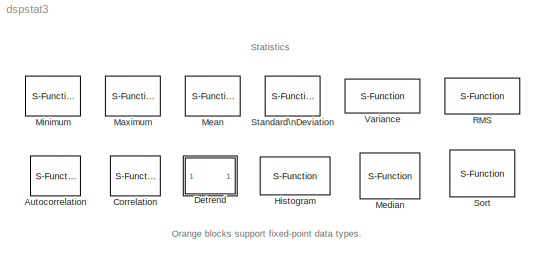
MODEL dspstat3
KIND library
BLOCK [S-Function] Autocorrelation
  CopyFcn = dspfixptcopycallback
  DialogController = dspDDGCreate
  DialogControllerArgs = DataTag0
  FunctionName = sdspacf2
  MaskCallbackString = |||||||||||||||||
  MaskDescription = Compute the autocorrelation of vectors or frame-based matrices. For frame-based inputs, the block computes along the input's columns.\n\nWhen \"Compute all non-negative lags\" is selected, it computes using lags in the range [0, length(input)-1]. Otherwise, it computes using lags in the range [0, maxLag], where you specify the value of maxLag in the \"Maximum non-negative lag\" parameter.
  MaskDisplay = disp('ACF')
  MaskEnableString = on,on,on,on,off,off,on,on,on,on,on,on,on,on,on,on,on,on
  MaskHelp = web(dspbhelp);
  MaskIconFrame = on
  MaskIconOpaque = on
  MaskIconRotate = none
  MaskIconUnits = autoscale
  MaskInitialization = dtInfo = dspblkacf2('init');\n
  MaskPromptString = Compute all non-negative lags|Maximum non-negative lag (less than input length):|Scaling:|Computation domain:|--------------- Show additional parameters ---------------|Allow overrides from DSP Fixed-Point Attributes blocks|Fixed-point output attributes:|Output word length:|Output fraction length:|Fixed-point accumulator attributes:|Accumulator word length:|Accumulator fraction length:|Fixed-point...<+164ch>
  MaskSelfModifiable = on
  MaskStyleString = checkbox,edit,popup(None|Biased|Unbiased|Unity at zero-lag),popup(Time|Frequency),checkbox,checkbox,popup(Same as accumulator|Same as product output|Same as input|Binary point scaling|Slope and bias scaling|User-defined),edit,edit,popup(Inherit via internal rule|Same as product output|Same as input|Binary point scaling|Slope and bias scaling|User-defined),edit,edit,popup(Inherit via internal rule|...<+120ch>
  MaskTabNameString = ,,,,,,,,,,,,,,,,,
  MaskToolTipString = on,on,on,on,on,on,on,on,on,on,on,on,on,on,on,on,on,on
  MaskTunableValueString = off,off,on,off,off,off,off,off,off,off,off,off,off,off,off,off,off,off
  MaskType = Autocorrelation
  MaskValueString = on|1|None|Time|off|on|Same as accumulator|16|15|Inherit via internal rule|32|30|Inherit via internal rule|32|30|Floor|off|off
  MaskVarAliasString = ,,,,,,,,,,,,,,,,,
  MaskVariables = AllPositiveLags=@1;maxlag=@2;bias=@3;domain=@4;additionalParams=@5;allowOverrides=@6;outputMode=@7;outputWordLength=@8;outputFracLength=@9;accumMode=@10;accumWordLength=@11;accumFracLength=@12;prodOutputMode=@13;prodOutputWordLength=@14;prodOutputFracLength=@15;roundingMode=@16;overflowMode=@17;LockScale=@18;
  MaskVisibilityString = on,on,on,on,off,off,on,on,on,on,on,on,on,on,on,on,on,on
  Parameters = AllPositiveLags,maxlag,bias,domain,dtInfo.prodOutputMode,dtInfo.prodOutputWordLength,dtInfo.prodOutputFracLength,dtInfo.accumMode,dtInfo.accumWordLength,dtInfo.accumFracLength,dtInfo.outputMode,dtInfo.outputWordLength,dtInfo.outputFracLength,dtInfo.roundingMode,dtInfo.overflowMode
  Ports = [1, 1]
BLOCK [S-Function] Correlation
  CopyFcn = dspfixptcopycallback
  DialogController = dspDDGCreate
  DialogControllerArgs = DataTag1
  FunctionName = sdspconvcorr
  MaskCallbackString = ||||||||||||||
  MaskDescription = Correlate two inputs. The block computes in the time domain or frequency domain.  To minimize the number of computations, select \"Fastest\" in the Computation domain parameter. To minimize memory use, select \"Time\" in the Computation domain parameter.
  MaskDisplay = disp('XCORR')
  MaskEnableString = on,off,off,on,on,on,on,on,on,on,on,on,on,on,on
  MaskHelp = web(dspbhelp);
  MaskIconFrame = on
  MaskIconOpaque = on
  MaskIconRotate = none
  MaskIconUnits = autoscale
  MaskInitialization = dtInfo = dspblkconvcorr('init');
  MaskPromptString = Computation domain:|------- Show additional parameters -------|Allow overrides from DSP Fixed-Point Attributes blocks|Fixed-point output attributes:|Output word length:|Output fraction length:|Fixed-point accumulator attributes:|Accumulator word length:|Accumulator fraction length:|Fixed-point product output attributes:|Product output word length:|Product output fraction length:|Round integer calc...<+58ch>
  MaskSelfModifiable = on
  MaskStyleString = popup(Time|Frequency|Fastest),checkbox,checkbox,popup(Same as accumulator|Same as product output|Same as first input|Binary point scaling|Slope and bias scaling|User-defined),edit,edit,popup(Inherit via internal rule|Same as product output|Same as first input|Binary point scaling|Slope and bias scaling|User-defined),edit,edit,popup(Inherit via internal rule|Same as first input|Binary point scaling...<+86ch>
  MaskTabNameString = ,,,,,,,,,,,,,,
  MaskToolTipString = on,on,on,on,on,on,on,on,on,on,on,on,on,on,on
  MaskTunableValueString = off,off,off,off,off,off,off,off,off,off,off,off,off,off,off
  MaskType = Correlation
  MaskValueString = Time|off|on|Same as accumulator|16|15|Inherit via internal rule|32|30|Inherit via internal rule|32|30|Floor|off|off
  MaskVarAliasString = ,,,,,,,,,,,,,,
  MaskVariables = domain=@1;additionalParams=@2;allowOverrides=@3;outputMode=@4;outputWordLength=@5;outputFracLength=@6;accumMode=@7;accumWordLength=@8;accumFracLength=@9;prodOutputMode=@10;prodOutputWordLength=@11;prodOutputFracLength=@12;roundingMode=@13;overflowMode=@14;LockScale=@15;
  MaskVisibilityString = on,off,off,on,on,on,on,on,on,on,on,on,on,on,on
  Parameters = domain,1,dtInfo.prodOutputMode,dtInfo.prodOutputWordLength,dtInfo.prodOutputFracLength,dtInfo.accumMode,dtInfo.accumWordLength,dtInfo.accumFracLength,dtInfo.outputMode,dtInfo.outputWordLength,dtInfo.outputFracLength,dtInfo.roundingMode,dtInfo.overflowMode
  Ports = [2, 1]
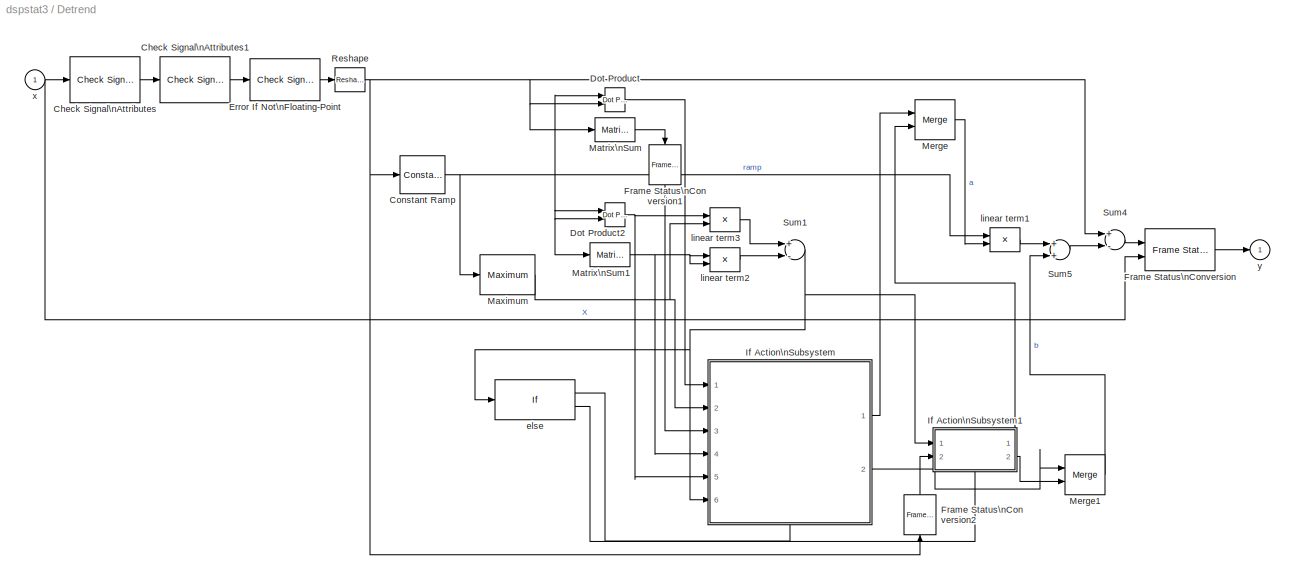
BLOCK [SubSystem] Detrend
  MaskDescription = Remove linear trend from vector input.
  MaskDisplay = plot(0,0,100,100,[12 20 24 32 38 44 49 54 67 69 71 78 81 89],[56 76 60 79 75 83 80 87 65 76 84 86 91 89],[],[],[],[],[],[],[12 20 24 32 38 44 49 54 67 69 71 78 81 89],[12 31 13 31 27 34 30 36 13 23 30 31 34 32],[4 96],[61 90],[47 47 42 47 52],[64 44 50 44 50],[4 96],[23 23])
  MaskHelp = web(dspbhelp);
  MaskIconFrame = on
  MaskIconOpaque = on
  MaskIconRotate = none
  MaskIconUnits = autoscale
  MaskType = Detrend
  MinAlgLoopOccurrences = off
  Ports = [1, 1]
  PropExecContextAcrossSSBoundary = on
  RTWSystemCode = Auto
  TreatAsAtomicUnit = off
BLOCK [Reference] Detrend/Check Signal\nAttributes  REF=dspsigattribs/Check Signal\nAttributes
  Complexity = Ignore
  DatatypeCheckMethod = Ignore
  DatatypeGeneral = Boolean
  Dimensions = Vector (1-D or 2-D) or scalar
  DimsCheckMethod = Is...
  DtypeFixedSpecific = Any fixed-point
  DtypeFloatSpecific = Any floating-point
  DtypeIntSpecific = Any integer
  Frame = Ignore
  Ports = [1, 1]
  SampleMode = Ignore
  ShowPortLabels = on
  SigAttribCheckMethod = Does not match attributes exactly
  SourceBlock = dspsigattribs/Check Signal\nAttributes
  SourceType = Check Signal Attributes
BLOCK [Reference] Detrend/Check Signal\nAttributes1  REF=dspsigattribs/Check Signal\nAttributes
  Complexity = Ignore
  DatatypeCheckMethod = Ignore
  DatatypeGeneral = Boolean
  Dimensions = Row vector (2-D)
  DimsCheckMethod = Is...
  DtypeFixedSpecific = Any fixed-point
  DtypeFloatSpecific = Any floating-point
  DtypeIntSpecific = Any integer
  Frame = Frame-based
  Ports = [1, 1]
  SampleMode = Ignore
  ShowPortLabels = on
  SigAttribCheckMethod = Matches attributes exactly
  SourceBlock = dspsigattribs/Check Signal\nAttributes
  SourceType = Check Signal Attributes
BLOCK [Reference] Detrend/Constant Ramp  REF=dspsrcs4/Constant Ramp
  L = Rows
  Offset = 1
  Ports = [1, 1]
  Slope = 1
  SourceBlock = dspsrcs4/Constant Ramp
  SourceType = Constant Ramp
  additionalParams = off
  allowOverrides = on
  dataType = Same as input
  fracBitsMode = Best precision
  isSigned = on
  numFracBits = 15
  udDataType = sfix(16)
  wordLen = 16
BLOCK [Reference] Detrend/Dot Product  REF=simulink/Math\nOperations/Dot Product
  DoSatur = off
  InputSameDT = off
  LockScale = off
  OutDataType = sfix(16)
  OutScaling = 2^-10
  OutputDataTypeScalingMode = Inherit via internal rule
  Ports = [2, 1]
  RndMeth = Floor
  SourceBlock = simulink/Math\nOperations/Dot Product
  SourceType = Dot Product
BLOCK [Reference] Detrend/Dot Product2  REF=simulink/Math\nOperations/Dot Product
  DoSatur = off
  InputSameDT = off
  LockScale = off
  OutDataType = sfix(16)
  OutScaling = 2^-10
  OutputDataTypeScalingMode = Inherit via internal rule
  Ports = [2, 1]
  RndMeth = Floor
  SourceBlock = simulink/Math\nOperations/Dot Product
  SourceType = Dot Product
BLOCK [Reference] Detrend/Error If Not\nFloating-Point  REF=dspsigattribs/Check Signal\nAttributes
  Complexity = Ignore
  DatatypeCheckMethod = Is...
  DatatypeGeneral = Floating-point
  Dimensions = 1-D
  DimsCheckMethod = Ignore
  DtypeFixedSpecific = Any fixed-point
  DtypeFloatSpecific = Any floating-point
  DtypeIntSpecific = Any integer
  Frame = Ignore
  Ports = [1, 1]
  SampleMode = Ignore
  ShowPortLabels = on
  SigAttribCheckMethod = Does not match attributes exactly
  SourceBlock = dspsigattribs/Check Signal\nAttributes
  SourceType = Check Signal Attributes
BLOCK [Reference] Detrend/Frame Status\nConversion  REF=dspsigattribs/Frame Status\nConversion
  Ports = [2, 1]
  ShowPortLabels = off
  SourceBlock = dspsigattribs/Frame Status\nConversion
  SourceType = Frame Status Conversion
  growRefPort = on
  outframe = Frame-based
BLOCK [Reference] Detrend/Frame Status\nConversion1  REF=dspsigattribs/Frame Status\nConversion
  Ports = [1, 1]
  ShowPortLabels = off
  SourceBlock = dspsigattribs/Frame Status\nConversion
  SourceType = Frame Status Conversion
  growRefPort = off
  outframe = Sample-based
BLOCK [Reference] Detrend/Frame Status\nConversion2  REF=dspsigattribs/Frame Status\nConversion
  Ports = [1, 1]
  ShowPortLabels = off
  SourceBlock = dspsigattribs/Frame Status\nConversion
  SourceType = Frame Status Conversion
  growRefPort = off
  outframe = Sample-based
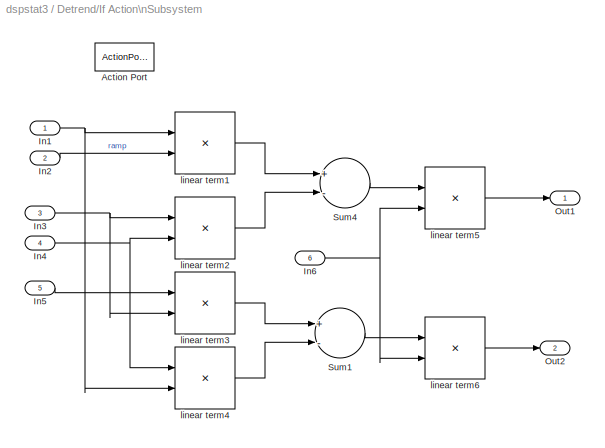
BLOCK [SubSystem] Detrend/If Action\nSubsystem
  MinAlgLoopOccurrences = off
  Ports = [6, 2, 0, 0, 0, 0, 0, 1]
  PropExecContextAcrossSSBoundary = on
  RTWSystemCode = Auto
  TreatAsAtomicUnit = on
BLOCK [ActionPort] Detrend/If Action\nSubsystem/Action Port
BLOCK [Inport] Detrend/If Action\nSubsystem/In1
  IconDisplay = Port number
  LatchInput = off
BLOCK [Inport] Detrend/If Action\nSubsystem/In2
  IconDisplay = Port number
  LatchInput = off
  Port = 2
BLOCK [Inport] Detrend/If Action\nSubsystem/In3
  IconDisplay = Port number
  LatchInput = off
  Port = 3
BLOCK [Inport] Detrend/If Action\nSubsystem/In4
  IconDisplay = Port number
  LatchInput = off
  Port = 4
BLOCK [Inport] Detrend/If Action\nSubsystem/In5
  IconDisplay = Port number
  LatchInput = off
  Port = 5
BLOCK [Inport] Detrend/If Action\nSubsystem/In6
  IconDisplay = Port number
  LatchInput = off
  Port = 6
BLOCK [Outport] Detrend/If Action\nSubsystem/Out1
  BusOutputAsStruct = off
  IconDisplay = Port number
BLOCK [Outport] Detrend/If Action\nSubsystem/Out2
  BusOutputAsStruct = off
  IconDisplay = Port number
  Port = 2
BLOCK [Sum] Detrend/If Action\nSubsystem/Sum1
  Inputs = +-
  Ports = [2, 1]
BLOCK [Sum] Detrend/If Action\nSubsystem/Sum4
  Inputs = +-
  Ports = [2, 1]
BLOCK [Product] Detrend/If Action\nSubsystem/linear term1
  Ports = [2, 1]
  RndMeth = Floor
BLOCK [Product] Detrend/If Action\nSubsystem/linear term2
  Ports = [2, 1]
  RndMeth = Floor
BLOCK [Product] Detrend/If Action\nSubsystem/linear term3
  Ports = [2, 1]
  RndMeth = Floor
BLOCK [Product] Detrend/If Action\nSubsystem/linear term4
  Ports = [2, 1]
  RndMeth = Floor
BLOCK [Product] Detrend/If Action\nSubsystem/linear term5
  Inputs = */
  Ports = [2, 1]
  RndMeth = Floor
BLOCK [Product] Detrend/If Action\nSubsystem/linear term6
  Inputs = */
  Ports = [2, 1]
  RndMeth = Floor
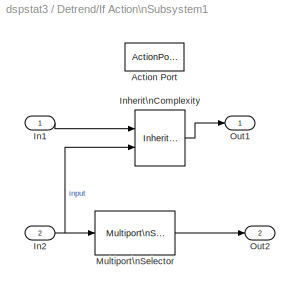
BLOCK [SubSystem] Detrend/If Action\nSubsystem1
  MinAlgLoopOccurrences = off
  Ports = [2, 2, 0, 0, 0, 0, 0, 1]
  PropExecContextAcrossSSBoundary = on
  RTWSystemCode = Auto
  TreatAsAtomicUnit = on
BLOCK [ActionPort] Detrend/If Action\nSubsystem1/Action Port
BLOCK [Inport] Detrend/If Action\nSubsystem1/In1
  IconDisplay = Port number
  LatchInput = off
BLOCK [Inport] Detrend/If Action\nSubsystem1/In2
  IconDisplay = Port number
  LatchInput = off
  Port = 2
BLOCK [Reference] Detrend/If Action\nSubsystem1/Inherit\nComplexity  REF=dspsigattribs/Inherit\nComplexity
  Ports = [2, 1]
  SourceBlock = dspsigattribs/Inherit\nComplexity
  SourceType = Inherit Complexity
BLOCK [Reference] Detrend/If Action\nSubsystem1/Multiport\nSelector  REF=dspindex/Multiport\nSelector
  Ports = [1, 1]
  SourceBlock = dspindex/Multiport\nSelector
  SourceType = Multiport Selector
  idxCellArray = 1
  idxErrMode = Clip Index
  rowsOrCols = Rows
BLOCK [Outport] Detrend/If Action\nSubsystem1/Out1
  BusOutputAsStruct = off
  IconDisplay = Port number
BLOCK [Outport] Detrend/If Action\nSubsystem1/Out2
  BusOutputAsStruct = off
  IconDisplay = Port number
  Port = 2
BLOCK [Reference] Detrend/Matrix\nSum  REF=dspmtrx3/Matrix\nSum
  DialogController = dspDDGCreate
  DialogControllerArgs = DataTag2
  Dim = Columns
  Ports = [1, 1]
  SourceBlock = dspmtrx3/Matrix\nSum
  SourceType = Matrix Sum
  accumFracLength = 30
  accumMode = Inherit via internal rule
  accumWordLength = 32
  additionalParams = off
  allowOverrides = on
  outputFracLength = 15
  outputMode = Same as accumulator
  outputWordLength = 16
  overflowMode = off
  roundingMode = Floor
BLOCK [Reference] Detrend/Matrix\nSum1  REF=dspmtrx3/Matrix\nSum
  DialogController = dspDDGCreate
  DialogControllerArgs = DataTag3
  Dim = Columns
  Ports = [1, 1]
  SourceBlock = dspmtrx3/Matrix\nSum
  SourceType = Matrix Sum
  accumFracLength = 30
  accumMode = Inherit via internal rule
  accumWordLength = 32
  additionalParams = off
  allowOverrides = on
  outputFracLength = 15
  outputMode = Same as accumulator
  outputWordLength = 16
  overflowMode = off
  roundingMode = Floor
BLOCK [Reference] Detrend/Maximum  REF=dspstat3/Maximum
  DialogController = dspDDGCreate
  DialogControllerArgs = DataTag4
  Ports = [1, 1]
  SourceBlock = dspstat3/Maximum
  SourceType = Maximum
  accumFracLength = 30
  accumMode = Same as product output
  accumWordLength = 32
  additionalParams = off
  allowOverrides = on
  fcn = Value
  overflowMode = off
  prodOutputFracLength = 30
  prodOutputMode = Same as input
  prodOutputWordLength = 32
  reset = None
  roundingMode = Floor
BLOCK [Merge] Detrend/Merge
  Ports = [2, 1]
BLOCK [Merge] Detrend/Merge1
  Ports = [2, 1]
BLOCK [Reference] Detrend/Reshape  REF=simulink/Math\nOperations/Reshape
  OutputDimensionality = Column vector
  OutputDimensions = [1,1]
  Ports = [1, 1]
  SourceBlock = simulink/Math\nOperations/Reshape
  SourceType = Reshape
BLOCK [Sum] Detrend/Sum1
  Inputs = +-
  Ports = [2, 1]
BLOCK [Sum] Detrend/Sum4
  Inputs = +-
  Ports = [2, 1]
BLOCK [Sum] Detrend/Sum5
  Inputs = 2
  Ports = [2, 1]
BLOCK [If] Detrend/else
  IfExpression = u1 > 1
  Ports = [1, 2]
  ZeroCross = off
BLOCK [Product] Detrend/linear term1
  Ports = [2, 1]
  RndMeth = Floor
BLOCK [Product] Detrend/linear term2
  Ports = [2, 1]
  RndMeth = Floor
BLOCK [Product] Detrend/linear term3
  Ports = [2, 1]
  RndMeth = Floor
BLOCK [Inport] Detrend/x
  IconDisplay = Port number
  LatchInput = off
BLOCK [Outport] Detrend/y
  BusOutputAsStruct = off
  IconDisplay = Port number
  InitialOutput = 0
BLOCK [S-Function] Histogram
  CopyFcn = dspfixptcopycallback
  DialogController = dspDDGCreate
  DialogControllerArgs = DataTag5
  FunctionName = sdsphist2
  MaskCallbackString = ||||||||||||||||
  MaskDescription = Histogram of the vector elements.  If running histogram is selected, block returns the histogram of the input elements over time.\n\nThe accumulator and product output parameters are only used for complex fixed-point inputs.
  MaskDisplay = plot(x,y);\nport_label('input',s.i1,s.i1s);\nport_label('input',s.i2,s.i2s);\n
  MaskEnableString = on,on,on,on,on,on,on,off,off,on,on,on,on,on,on,on,on
  MaskHelp = web(dspbhelp);
  MaskIconFrame = on
  MaskIconOpaque = on
  MaskIconRotate = none
  MaskIconUnits = normalized
  MaskInitialization = [s,x,y] = dspblkhist2('icon');\ndtInfo = dspblkhist2('init');\ntrigtype=trigtype-1;\n
  MaskPromptString = Minimum value of input:|Maximum  value of input:|Number of bins:|Normalized|Running histogram|Reset port|Trigger type:|--------------- Show additional parameters ---------------|Allow overrides from DSP Attributes blocks|Fixed-point accumulator attributes|Accumulator word length:|Accumulator fraction length:|Fixed-point product output attributes:|Product output word length:|Product output fraction...<+72ch>
  MaskSelfModifiable = on
  MaskStyleString = edit,edit,edit,checkbox,checkbox,checkbox,popup(None|Rising edge|Falling edge|Either edge|Non-zero sample),checkbox,checkbox,popup(Same as product output|Same as input|Binary point scaling|Slope and bias scaling|User-defined),edit,edit,popup(Same as input|Binary point scaling|Slope and bias scaling|User-defined),edit,edit,popup(Floor|Nearest),checkbox
  MaskTabNameString = ,,,,,,,,,,,,,,,,
  MaskToolTipString = on,on,on,on,on,on,on,on,on,on,on,on,on,on,on,on,on
  MaskTunableValueString = on,on,off,on,off,off,off,off,off,off,off,off,off,off,off,off,off
  MaskType = Histogram
  MaskValueString = 0|10|11|off|off|on|Non-zero sample|off|on|Same as input|32|30|Same as input|32|30|Floor|off
  MaskVarAliasString = ,,,,,,,,,,,,,,,,
  MaskVariables = umin=@1;umax=@2;nbins=@3;normalized=@4;run=@5;reset=@6;trigtype=@7;additionalParams=@8;allowOverrides=@9;accumMode=@10;accumWordLength=@11;accumFracLength=@12;prodOutputMode=@13;prodOutputWordLength=@14;prodOutputFracLength=@15;roundingMode=@16;overflowMode=@17;
  MaskVisibilityString = on,on,on,on,on,on,on,off,off,on,on,on,on,on,on,on,on
  Parameters = umin,umax,nbins,normalized,run,reset,trigtype,dtInfo.prodOutputMode,dtInfo.prodOutputWordLength,dtInfo.prodOutputFracLength,dtInfo.accumMode,dtInfo.accumWordLength,dtInfo.accumFracLength,dtInfo.roundingMode,dtInfo.overflowMode
  Ports = [1, 1]
BLOCK [S-Function] Maximum
  CopyFcn = dspfixptcopycallback
  DialogController = dspDDGCreate
  DialogControllerArgs = DataTag6
  FunctionName = sdspstatfcns
  MaskCallbackString = ||||||||||||
  MaskDescription = Value and/or index of maximum element in vector. If \"Running\" is selected for the Mode parameter, the block returns the maximum of the input elements over time. \n\nThe accumulator and product output parameters are only used for complex fixed-point inputs.
  MaskDisplay = plot(x,y);\nport_label('input',s.i1,s.i1s);\nport_label('input',s.i2,s.i2s);\nport_label('output',s.o1,s.o1s);\nport_label('output',s.o2,s.o2s);
  MaskEnableString = on,on,off,off,on,on,on,on,on,on,on,on,on
  MaskHelp = web(dspbhelp);
  MaskIconFrame = on
  MaskIconOpaque = on
  MaskIconRotate = none
  MaskIconUnits = autoscale
  MaskInitialization = [s, x, y] = dspblkminmax('icon','max');\nreset=reset-1;\nstatfcn=5;map = [0 2 3 1];\nfcn = map(fcn);\ndtInfo = dspblkminmax('init');\n
  MaskPromptString = Mode:|Reset port:|--------------- Show additional parameters ---------------|Allow overrides from DSP Attributes blocks|Fixed-point accumulator attributes:|Accumulator word length:|Accumulator fraction length:|Fixed-point product output attributes:|Product output word length:|Product output fraction length:|Round integer calculations toward:|Saturate on integer overflow|Lock scaling
  MaskSelfModifiable = on
  MaskStyleString = popup(Value and Index|Value|Index|Running),popup(None|Rising edge|Falling edge|Either edge|Non-zero sample),checkbox,checkbox,popup(Same as product output|Same as input|Binary point scaling|Slope and bias scaling|User-defined),edit,edit,popup(Same as input|Binary point scaling|Slope and bias scaling|User-defined),edit,edit,popup(Floor|Nearest),checkbox,checkbox
  MaskTabNameString = ,,,,,,,,,,,,
  MaskToolTipString = on,on,on,on,on,on,on,on,on,on,on,on,on
  MaskTunableValueString = off,off,off,off,off,off,off,off,off,off,off,off,off
  MaskType = Maximum
  MaskValueString = Value and Index|None|off|on|Same as product output|32|30|Same as input|32|30|Floor|off|off
  MaskVarAliasString = ,,,,,,,,,,,,
  MaskVariables = fcn=@1;reset=@2;additionalParams=@3;allowOverrides=@4;accumMode=@5;accumWordLength=@6;accumFracLength=@7;prodOutputMode=@8;prodOutputWordLength=@9;prodOutputFracLength=@10;roundingMode=@11;overflowMode=@12;LockScale=@13;
  MaskVisibilityString = on,on,off,off,on,on,on,on,on,on,on,on,on
  Parameters = statfcn,fcn,reset,dtInfo.prodOutputMode,dtInfo.prodOutputWordLength,dtInfo.prodOutputFracLength,dtInfo.accumMode,dtInfo.accumWordLength,dtInfo.accumFracLength,0,0,0,dtInfo.roundingMode,dtInfo.overflowMode
  Ports = [1, 2]
BLOCK [S-Function] Mean
  CopyFcn = dspfixptcopycallback
  DialogController = dspDDGCreate
  DialogControllerArgs = DataTag7
  FunctionName = sdspstatfcns
  MaskCallbackString = ||||||||||||
  MaskDescription = Mean of the vector elements. If \"Running mean\" is selected, the block returns the mean of the input elements over time.
  MaskDisplay = plot(x,y);\nport_label('input',s.i1,s.i1s);\nport_label('input',s.i2,s.i2s);\n
  MaskEnableString = on,on,off,off,on,on,on,on,on,on,on,on,on
  MaskHelp = web(dspbhelp);
  MaskIconFrame = on
  MaskIconOpaque = on
  MaskIconRotate = none
  MaskIconUnits = autoscale
  MaskInitialization = [s,x,y] = dspblkmean2('icon');\nreset=reset_popup-1;\nfcn=3;\ndtInfo = dspblkmean2('init');
  MaskPromptString = Running mean|Reset port|--------------- Show additional parameters ---------------|Allow overrides from DSP Attributes blocks|Fixed-point output attributes:|Output word length:|Output fraction length:|Fixed-point accumulator attributes|Accumulator word length:|Accumulator fraction length:|Round integer calculations toward:|Saturate on integer overflow|Lock scaling
  MaskSelfModifiable = on
  MaskStyleString = checkbox,popup(None|Rising edge|Falling edge|Either edge|Non-zero sample),checkbox,checkbox,popup(Same as accumulator|Same as input|Binary point scaling|Slope and bias scaling|User-defined),edit,edit,popup(Same as input|Binary point scaling|Slope and bias scaling|User-defined),edit,edit,popup(Floor|Nearest),checkbox,checkbox
  MaskTabNameString = ,,,,,,,,,,,,
  MaskToolTipString = on,on,on,on,on,on,on,on,on,on,on,on,on
  MaskTunableValueString = off,off,off,off,off,off,off,off,off,off,off,off,off
  MaskType = Mean
  MaskValueString = off|None|off|on|Same as accumulator|32|30|Same as input|32|30|Floor|off|off
  MaskVarAliasString = ,,,,,,,,,,,,
  MaskVariables = run=@1;reset_popup=@2;additionalParams=@3;allowOverrides=@4;outputMode=@5;outputWordLength=@6;outputFracLength=@7;accumMode=@8;accumWordLength=@9;accumFracLength=@10;roundingMode=@11;overflowMode=@12;LockScale=@13;
  MaskVisibilityString = on,on,off,off,on,on,on,on,on,on,on,on,on
  Parameters = fcn,run,reset,0,0,0,dtInfo.accumMode,dtInfo.accumWordLength,dtInfo.accumFracLength,dtInfo.outputMode,dtInfo.outputWordLength,dtInfo.outputFracLength,dtInfo.roundingMode,dtInfo.overflowMode
  Ports = [1, 1]
BLOCK [S-Function] Median
  CopyFcn = dspfixptcopycallback
  DialogController = dspDDGCreate
  DialogControllerArgs = DataTag8
  FunctionName = sdspmdn2
  MaskCallbackString = ||||||||||||||
  MaskDescription = Median value of input elements.\n\nThe accumulator and product output parameters are only used for complex fixed-point inputs.
  MaskDisplay = plot(x,y);
  MaskEnableString = on,off,off,on,on,on,on,on,on,on,on,on,on,on,on
  MaskHelp = web(dspbhelp);
  MaskIconFrame = on
  MaskIconOpaque = on
  MaskIconRotate = none
  MaskIconUnits = normalized
  MaskInitialization = [x,y] = dspblkmedian('icon');\ndtInfo = dspblkmedian('init');\n
  MaskPromptString = Sort algorithm:|--------------- Show additional parameters ---------------|Allow overrides from DSP Attributes blocks|Fixed-point output attributes:|Output word length:|Output fraction length:|Fixed-point accumulator attributes|Accumulator word length:|Accumulator fraction length:|Fixed-point product output attributes:|Product output word length:|Product output fraction length:|Round integer calcu...<+57ch>
  MaskSelfModifiable = on
  MaskStyleString = popup(Quick sort|Insertion sort),checkbox,checkbox,popup(Same as accumulator|Same as product output|Same as input|Binary point scaling|Slope and bias scaling|User-defined),edit,edit,popup(Same as product output|Same as input|Binary point scaling|Slope and bias scaling|User-defined),edit,edit,popup(Same as input|Binary point scaling|Slope and bias scaling|User-defined),edit,edit,popup(Floor|Nearest...<+19ch>
  MaskTabNameString = ,,,,,,,,,,,,,,
  MaskToolTipString = on,on,on,on,on,on,on,on,on,on,on,on,on,on,on
  MaskTunableValueString = off,off,off,off,off,off,off,off,off,off,off,off,off,off,off
  MaskType = Median
  MaskValueString = Quick sort|off|off|Same as accumulator|16|15|Same as product output|32|30|Same as input|32|30|Floor|off|off
  MaskVarAliasString = ,,,,,,,,,,,,,,
  MaskVariables = sortAlg=@1;additionalParams=@2;allowOverrides=@3;outputMode=@4;outputWordLength=@5;outputFracLength=@6;accumMode=@7;accumWordLength=@8;accumFracLength=@9;prodOutputMode=@10;prodOutputWordLength=@11;prodOutputFracLength=@12;roundingMode=@13;overflowMode=@14;LockScale=@15;
  MaskVisibilityString = on,off,off,on,on,on,on,on,on,on,on,on,on,on,on
  Parameters = sortAlg,dtInfo.prodOutputMode,dtInfo.prodOutputWordLength,dtInfo.prodOutputFracLength,dtInfo.accumMode,dtInfo.accumWordLength,dtInfo.accumFracLength,dtInfo.outputMode,dtInfo.outputWordLength,dtInfo.outputFracLength,dtInfo.roundingMode,dtInfo.overflowMode
  Ports = [1, 1]
BLOCK [S-Function] Minimum
  CopyFcn = dspfixptcopycallback
  DialogController = dspDDGCreate
  DialogControllerArgs = DataTag9
  FunctionName = sdspstatfcns
  MaskCallbackString = ||||||||||||
  MaskDescription = Value and/or index of minimum element in vector. If \"Running\" is selected for the Mode parameter, the block returns the minimum of the input elements over time. \n\nThe accumulator and product output parameters are only used for complex fixed-point inputs.
  MaskDisplay = plot(x,y);\nport_label('input',s.i1,s.i1s);\nport_label('input',s.i2,s.i2s);\nport_label('output',s.o1,s.o1s);\nport_label('output',s.o2,s.o2s);
  MaskEnableString = on,on,off,off,on,on,on,on,on,on,on,on,on
  MaskHelp = web(dspbhelp);
  MaskIconFrame = on
  MaskIconOpaque = on
  MaskIconRotate = none
  MaskIconUnits = autoscale
  MaskInitialization = [s, x, y] = dspblkminmax('icon','min');\nreset=reset-1;\nstatfcn=4;map = [0 2 3 1];\nfcn = map(fcn);\ndtInfo = dspblkminmax('init');\n
  MaskPromptString = Mode:|Reset port|--------------- Show additional parameters ---------------|Allow overrides from DSP Attributes blocks|Fixed-point accumulator attributes:|Accumulator word length:|Accumulator fraction length:|Fixed-point product output attributes:|Product output word length:|Product output fraction length:|Round integer calculations toward:|Saturate on integer overflow|Lock scaling
  MaskSelfModifiable = on
  MaskStyleString = popup(Value and Index|Value|Index|Running),popup(None|Rising edge|Falling edge|Either edge|Non-zero sample),checkbox,checkbox,popup(Same as input|Same as product output|Binary point scaling|Slope and bias scaling|User-defined),edit,edit,popup(Same as input|Binary point scaling|Slope and bias scaling|User-defined),edit,edit,popup(Floor|Nearest),checkbox,checkbox
  MaskTabNameString = ,,,,,,,,,,,,
  MaskToolTipString = on,on,on,on,on,on,on,on,on,on,on,on,on
  MaskTunableValueString = off,off,off,off,off,off,off,off,off,off,off,off,off
  MaskType = Minimum
  MaskValueString = Value and Index|None|off|on|Same as product output|32|30|Same as input|32|30|Floor|off|off
  MaskVarAliasString = ,reset_popup,,,,,,,,,,,
  MaskVariables = fcn=@1;reset=@2;additionalParams=@3;allowOverrides=@4;accumMode=@5;accumWordLength=@6;accumFracLength=@7;prodOutputMode=@8;prodOutputWordLength=@9;prodOutputFracLength=@10;roundingMode=@11;overflowMode=@12;LockScale=@13;
  MaskVisibilityString = on,on,off,off,on,on,on,on,on,on,on,on,on
  Parameters = statfcn,fcn,reset,dtInfo.prodOutputMode,dtInfo.prodOutputWordLength,dtInfo.prodOutputFracLength,dtInfo.accumMode,dtInfo.accumWordLength,dtInfo.accumFracLength,0,0,0,dtInfo.roundingMode,dtInfo.overflowMode
  Ports = [1, 2]
BLOCK [S-Function] RMS
  FunctionName = sdspstatfcns
  MaskCallbackString = dspblkrms2;|
  MaskDescription = Root-mean-square of the vector elements.  If \"Running RMS\" is selected, the block returns the RMS of the input elements over time.
  MaskDisplay = disp(x);\nport_label('input',s.i1,s.i1s);\nport_label('input',s.i2,s.i2s);
  MaskEnableString = on,off
  MaskHelp = web(dspbhelp);
  MaskIconFrame = on
  MaskIconOpaque = on
  MaskIconRotate = none
  MaskIconUnits = autoscale
  MaskInitialization = [s,x] = dspblkrms2('icon');\nfcn=2;\nreset=reset_popup-1;
  MaskPromptString = Running RMS|Reset port
  MaskSelfModifiable = on
  MaskStyleString = checkbox,popup(None|Rising edge|Falling edge|Either edge|Non-zero sample)
  MaskTabNameString = ,
  MaskToolTipString = on,on
  MaskTunableValueString = off,off
  MaskType = RMS
  MaskValueString = off|None
  MaskVarAliasString = ,
  MaskVariables = run=@1;reset_popup=@2;
  MaskVisibilityString = on,on
  Parameters = fcn,run,reset
  Ports = [1, 1]
BLOCK [S-Function] Sort
  CopyFcn = dspfixptcopycallback
  DialogController = dspDDGCreate
  DialogControllerArgs = DataTag10
  FunctionName = sdspsrt2
  MaskCallbackString = ||||||||||||
  MaskDescription = Value and/or index of sorted elements in vector or matrix.  For matrix inputs, the elements are sorted columnwise. \n\nThe accumulator and product output parameters are only used for complex fixed-point inputs.
  MaskDisplay = plot(x,y);\nport_label('input',s.i1,s.i1s);\nport_label('input',s.i2,s.i2s);\nport_label('output',s.o1,s.o1s);\nport_label('output',s.o2,s.o2s);
  MaskEnableString = on,on,on,off,off,on,on,on,on,on,on,on,on
  MaskHelp = web(dspbhelp);
  MaskIconFrame = on
  MaskIconOpaque = on
  MaskIconRotate = none
  MaskIconUnits = normalized
  MaskInitialization = [s,x,y] = dspblksort('icon',dir,otype);\ndtInfo = dspblksort('init');\n
  MaskPromptString = Mode:|Sort order:|Sort algorithm:|--------------- Show additional parameters ---------------|Allow overrides from DSP Attributes blocks|Fixed-point accumulator attributes|Accumulator word length:|Accumulator fraction length:|Fixed-point product output attributes:|Product output word length:|Product output fraction length:|Round integer calculations toward:|Saturate on integer overflow
  MaskSelfModifiable = on
  MaskStyleString = popup(Value and Index|Value|Index),popup(Ascending|Descending),popup(Quick sort|Insertion sort),checkbox,checkbox,popup(Same as product output|Same as input|Binary point scaling|Slope and bias scaling|User-defined),edit,edit,popup(Same as input|Binary point scaling|Slope and bias scaling|User-defined),edit,edit,popup(Floor|Nearest),checkbox
  MaskTabNameString = ,,,,,,,,,,,,
  MaskToolTipString = on,on,on,on,on,on,on,on,on,on,on,on,on
  MaskTunableValueString = off,on,off,off,off,off,off,off,off,off,off,off,off
  MaskType = Sort
  MaskValueString = Value and Index|Ascending|Quick sort|off|on|Same as product output|32|30|Same as input|32|30|Floor|off
  MaskVarAliasString = ,,,,,,,,,,,,
  MaskVariables = otype=@1;dir=@2;sortAlg=@3;additionalParams=@4;allowOverrides=@5;accumMode=@6;accumWordLength=@7;accumFracLength=@8;prodOutputMode=@9;prodOutputWordLength=@10;prodOutputFracLength=@11;roundingMode=@12;overflowMode=@13;
  MaskVisibilityString = on,on,on,off,off,on,on,on,on,on,on,on,on
  Parameters = dir,otype,sortAlg,dtInfo.prodOutputMode,dtInfo.prodOutputWordLength,dtInfo.prodOutputFracLength,dtInfo.accumMode,dtInfo.accumWordLength,dtInfo.accumFracLength,dtInfo.roundingMode,dtInfo.overflowMode
  Ports = [1, 2]
BLOCK [S-Function] Standard\nDeviation
  FunctionName = sdspstatfcns
  MaskCallbackString = dspblkstd2;|
  MaskDescription = Standard deviation of the vector elements. If \"Running standard deviation\" is selected, the block returns the standard deviation of the input elements over time.
  MaskDisplay = plot(x,y);\nport_label('input',s.i1,s.i1s);\nport_label('input',s.i2,s.i2s);
  MaskEnableString = on,off
  MaskHelp = web(dspbhelp);
  MaskIconFrame = on
  MaskIconOpaque = on
  MaskIconRotate = none
  MaskIconUnits = autoscale
  MaskInitialization = [s,x,y] = dspblkstd2('icon');\nfcn=1;\n %Set the flag to compute the standard deviation\nreset=reset_popup-1;
  MaskPromptString = Running standard deviation|Reset port
  MaskSelfModifiable = on
  MaskStyleString = checkbox,popup(None|Rising edge|Falling edge|Either edge|Non-zero sample)
  MaskTabNameString = ,
  MaskToolTipString = on,on
  MaskTunableValueString = off,off
  MaskType = Standard Deviation
  MaskValueString = off|None
  MaskVarAliasString = ,
  MaskVariables = run=@1;reset_popup=@2;
  MaskVisibilityString = on,on
  Parameters = fcn,run,reset
  Ports = [1, 1]
BLOCK [S-Function] Variance
  CopyFcn = dspfixptcopycallback
  DialogController = dspDDGCreate
  DialogControllerArgs = DataTag11
  FunctionName = sdspstatfcns
  MaskCallbackString = |||||||||||||||
  MaskDescription = Variance of the vector elements. If \"Running variance\" is selected, the block returns the variance of the input elements over time.
  MaskDisplay = disp(x);\nport_label('input',s.i1,s.i1s);\nport_label('input',s.i2,s.i2s);
  MaskEnableString = on,on,off,off,on,on,on,on,on,on,on,on,on,on,on,on
  MaskHelp = web(dspbhelp);
  MaskIconFrame = on
  MaskIconOpaque = on
  MaskIconRotate = none
  MaskIconUnits = autoscale
  MaskInitialization = [s,x] = dspblkvar2('icon');\nfcn=0; %Set the flag to compute the variance\nreset=reset_popup-1;\ndtInfo = dspblkvar2('init');
  MaskPromptString = Running variance|Reset port|--------------- Show additional parameters ---------------|Allow overrides from DSP Attributes blocks|Fixed-point output attributes:|Output word length:|Output fraction length:|Fixed-point accumulator attributes|Accumulator word length:|Accumulator fraction length:|Fixed-point product output attributes:|Product output word length:|Product output fraction length:|Round i...<+69ch>
  MaskSelfModifiable = on
  MaskStyleString = checkbox,popup(None|Rising edge|Falling edge|Either edge|Non-zero sample),checkbox,checkbox,popup(Same as accumulator|Same as product output|Same as input|Binary point scaling|Slope and bias scaling|User-defined),edit,edit,popup(Same as input|Same as product output|Binary point scaling|Slope and bias scaling|User-defined),edit,edit,popup(Same as input|Binary point scaling|Slope and bias scaling|Us...<+60ch>
  MaskTabNameString = ,,,,,,,,,,,,,,,
  MaskToolTipString = on,on,on,on,on,on,on,on,on,on,on,on,on,on,on,on
  MaskTunableValueString = off,off,off,off,off,off,off,off,off,off,off,off,off,off,off,off
  MaskType = Variance
  MaskValueString = off|None|off|on|Same as accumulator|32|30|Same as product output|32|30|Same as input|32|30|Floor|off|off
  MaskVarAliasString = ,,,,,,,,,,,,,,,
  MaskVariables = run=@1;reset_popup=@2;additionalParams=@3;allowOverrides=@4;outputMode=@5;outputWordLength=@6;outputFracLength=@7;accumMode=@8;accumWordLength=@9;accumFracLength=@10;prodOutputMode=@11;prodOutputWordLength=@12;prodOutputFracLength=@13;roundingMode=@14;overflowMode=@15;LockScale=@16;
  MaskVisibilityString = on,on,off,off,on,on,on,on,on,on,on,on,on,on,on,on
  Parameters = fcn,run,reset,dtInfo.prodOutputMode,dtInfo.prodOutputWordLength,dtInfo.prodOutputFracLength,dtInfo.accumMode,dtInfo.accumWordLength,dtInfo.accumFracLength,dtInfo.outputMode,dtInfo.outputWordLength,dtInfo.outputFracLength,dtInfo.roundingMode,dtInfo.overflowMode
  Ports = [1, 1]
ANNOTATION (root): Orange blocks support fixed-point data types.
ANNOTATION (root): Statistics
LINE Detrend/Check Signal\nAttributes1:1 -> Detrend/Error If Not\nFloating-Point:1
LINE Detrend/Check Signal\nAttributes:1 -> Detrend/Check Signal\nAttributes1:1
NET Detrend/Constant Ramp:1 -> Detrend/Dot Product2:1, Detrend/Dot Product2:2, Detrend/Dot Product:1, Detrend/Matrix\nSum1:1, Detrend/Maximum:1, Detrend/linear term1:1
NET Detrend/Dot Product2:1 -> Detrend/If Action\nSubsystem:5, Detrend/linear term3:1
LINE Detrend/Dot Product:1 -> Detrend/If Action\nSubsystem:1
LINE Detrend/Error If Not\nFloating-Point:1 -> Detrend/Reshape:1
LINE Detrend/Frame Status\nConversion1:1 -> Detrend/If Action\nSubsystem:3
LINE Detrend/Frame Status\nConversion2:1 -> Detrend/If Action\nSubsystem1:2
LINE Detrend/Frame Status\nConversion:1 -> Detrend/y:1
NET Detrend/If Action\nSubsystem/In1:1 -> Detrend/If Action\nSubsystem/linear term1:1, Detrend/If Action\nSubsystem/linear term4:2
LINE Detrend/If Action\nSubsystem/In2:1 -> Detrend/If Action\nSubsystem/linear term1:2
NET Detrend/If Action\nSubsystem/In3:1 -> Detrend/If Action\nSubsystem/linear term2:1, Detrend/If Action\nSubsystem/linear term3:2
NET Detrend/If Action\nSubsystem/In4:1 -> Detrend/If Action\nSubsystem/linear term2:2, Detrend/If Action\nSubsystem/linear term4:1
LINE Detrend/If Action\nSubsystem/In5:1 -> Detrend/If Action\nSubsystem/linear term3:1
NET Detrend/If Action\nSubsystem/In6:1 -> Detrend/If Action\nSubsystem/linear term5:2, Detrend/If Action\nSubsystem/linear term6:2
LINE Detrend/If Action\nSubsystem/Sum1:1 -> Detrend/If Action\nSubsystem/linear term6:1
LINE Detrend/If Action\nSubsystem/Sum4:1 -> Detrend/If Action\nSubsystem/linear term5:1
LINE Detrend/If Action\nSubsystem/linear term1:1 -> Detrend/If Action\nSubsystem/Sum4:1
LINE Detrend/If Action\nSubsystem/linear term2:1 -> Detrend/If Action\nSubsystem/Sum4:2
LINE Detrend/If Action\nSubsystem/linear term3:1 -> Detrend/If Action\nSubsystem/Sum1:1
LINE Detrend/If Action\nSubsystem/linear term4:1 -> Detrend/If Action\nSubsystem/Sum1:2
LINE Detrend/If Action\nSubsystem/linear term5:1 -> Detrend/If Action\nSubsystem/Out1:1
LINE Detrend/If Action\nSubsystem/linear term6:1 -> Detrend/If Action\nSubsystem/Out2:1
LINE Detrend/If Action\nSubsystem1/In1:1 -> Detrend/If Action\nSubsystem1/Inherit\nComplexity:1
NET Detrend/If Action\nSubsystem1/In2:1 -> Detrend/If Action\nSubsystem1/Inherit\nComplexity:2, Detrend/If Action\nSubsystem1/Multiport\nSelector:1
LINE Detrend/If Action\nSubsystem1/Inherit\nComplexity:1 -> Detrend/If Action\nSubsystem1/Out1:1
LINE Detrend/If Action\nSubsystem1/Multiport\nSelector:1 -> Detrend/If Action\nSubsystem1/Out2:1
LINE Detrend/If Action\nSubsystem1:1 -> Detrend/Merge:2
LINE Detrend/If Action\nSubsystem1:2 -> Detrend/Merge1:2
LINE Detrend/If Action\nSubsystem:1 -> Detrend/Merge:1
LINE Detrend/If Action\nSubsystem:2 -> Detrend/Merge1:1
NET Detrend/Matrix\nSum1:1 -> Detrend/If Action\nSubsystem:4, Detrend/linear term2:1, Detrend/linear term2:2
LINE Detrend/Matrix\nSum:1 -> Detrend/Frame Status\nConversion1:1
NET Detrend/Maximum:1 -> Detrend/If Action\nSubsystem:2, Detrend/linear term3:2
LINE Detrend/Merge1:1 -> Detrend/Sum5:2
LINE Detrend/Merge:1 -> Detrend/linear term1:2
NET Detrend/Reshape:1 -> Detrend/Constant Ramp:1, Detrend/Dot Product:2, Detrend/Frame Status\nConversion2:1, Detrend/Matrix\nSum:1, Detrend/Sum4:1
NET Detrend/Sum1:1 -> Detrend/If Action\nSubsystem1:1, Detrend/If Action\nSubsystem:6, Detrend/else:1
LINE Detrend/Sum4:1 -> Detrend/Frame Status\nConversion:1
LINE Detrend/Sum5:1 -> Detrend/Sum4:2
LINE Detrend/else:1 -> Detrend/If Action\nSubsystem:ifaction
LINE Detrend/else:2 -> Detrend/If Action\nSubsystem1:ifaction
LINE Detrend/linear term1:1 -> Detrend/Sum5:1
LINE Detrend/linear term2:1 -> Detrend/Sum1:2
LINE Detrend/linear term3:1 -> Detrend/Sum1:1
NET Detrend/x:1 -> Detrend/Check Signal\nAttributes:1, Detrend/Frame Status\nConversion:2
note: NET lines group one-source signal fan-out (src -> all destinations, sorted); 1:1 wires keep LINE
